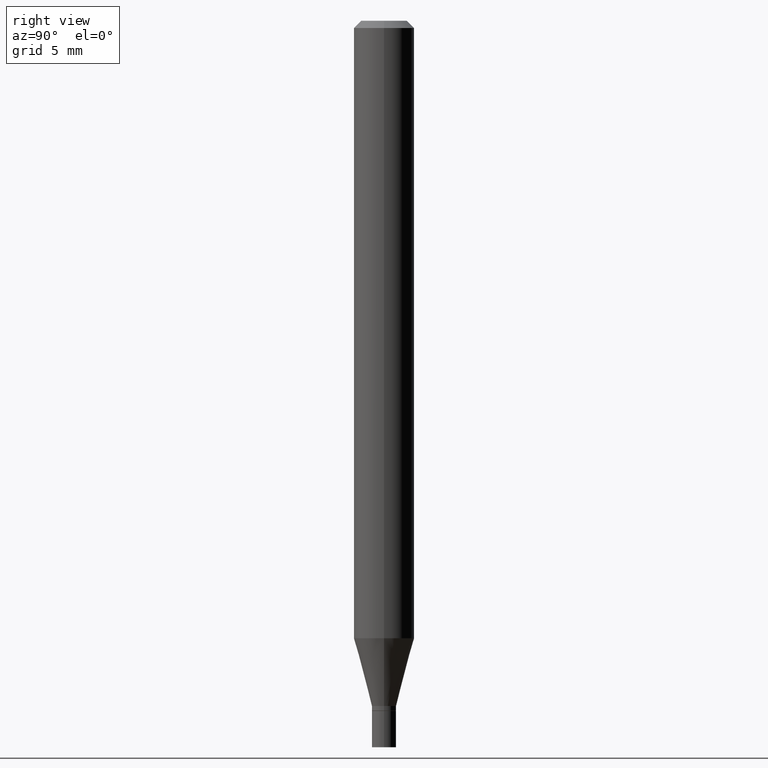
[diagram: clean part render]
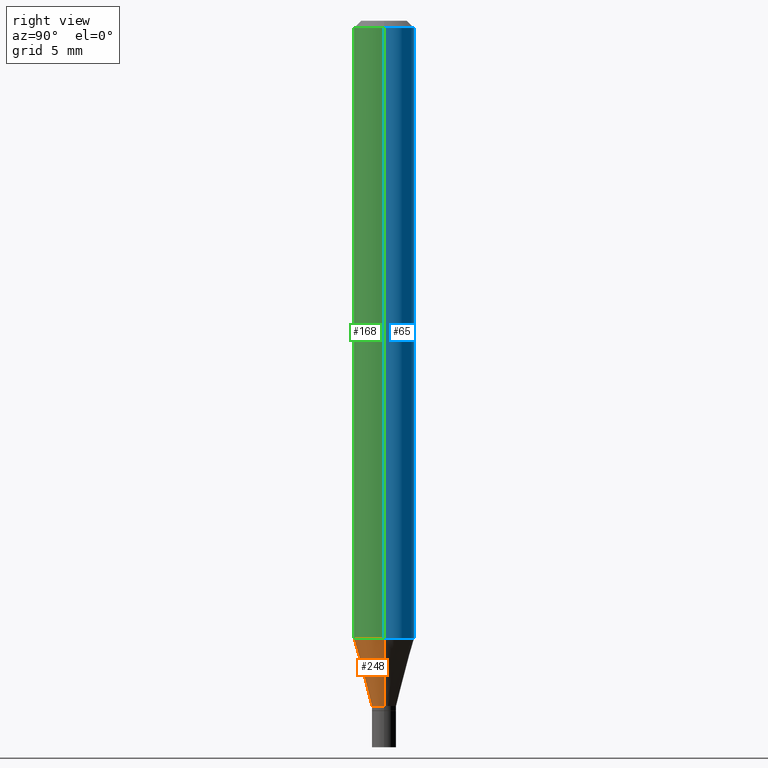
[diagram: same view with three faces highlighted in distinct colors, each labeled with its STEP entity id]
A machine part, right view with three faces highlighted in distinct colors.
Their STEP definitions:

[orange] entity #248 — the highlighted conical surface has half-angle 15 deg.
#15 = LINE ( 'NONE', #158, #332 ) ;
#25 = ORIENTED_EDGE ( 'NONE', *, *, #331, .T. ) ;
#35 = AXIS2_PLACEMENT_3D ( 'NONE', #170, #69, #211 ) ;
#40 = CONICAL_SURFACE ( 'NONE', #183, 0.02499999999999992853, 0.2617993877991500740 ) ;
#69 = DIRECTION ( 'NONE',  ( -2.445468806185136597E-29, 3.491481338843145583E-15, 1.000000000000000000 ) ) ;
#73 = DIRECTION ( 'NONE',  ( 0.2588190451025213501, 1.565188264969621968E-15, 0.9659258262890682012 ) ) ;
#93 = DIRECTION ( 'NONE',  ( 1.000000000000000000, -6.982962677686262766E-15, 0.000000000000000000 ) ) ;
#118 = EDGE_CURVE ( 'NONE', #376, #232, #393, .T. ) ;
#125 = ORIENTED_EDGE ( 'NONE', *, *, #430, .F. ) ;
#126 = CARTESIAN_POINT ( 'NONE',  ( -0.06250000000000001388, -4.007717418978942661E-15, -1.275048094716167313 ) ) ;
#128 = VERTEX_POINT ( 'NONE', #291 ) ;
#129 = EDGE_CURVE ( 'NONE', #461, #128, #207, .T. ) ;
#147 = DIRECTION ( 'NONE',  ( -2.445468806185136597E-29, 3.491481338843145583E-15, 1.000000000000000000 ) ) ;
#148 = AXIS2_PLACEMENT_3D ( 'NONE', #438, #425, #93 ) ;
#157 = CARTESIAN_POINT ( 'NONE',  ( -0.02499999999999992853, -4.385263914750984097E-15, -1.415000000000000036 ) ) ;
#158 = CARTESIAN_POINT ( 'NONE',  ( -0.02499999999999992853, -4.762810410523027111E-15, -1.415000000000000036 ) ) ;
#165 = ORIENTED_EDGE ( 'NONE', *, *, #129, .F. ) ;
#170 = CARTESIAN_POINT ( 'NONE',  ( 3.460338360751968441E-29, -4.940446094463050737E-15, -1.415000000000000036 ) ) ;
#183 = AXIS2_PLACEMENT_3D ( 'NONE', #287, #147, #433 ) ;
#207 = CIRCLE ( 'NONE', #148, 0.06250000000000000000 ) ;
#211 = DIRECTION ( 'NONE',  ( 1.000000000000000000, -6.982962677686274599E-15, 0.000000000000000000 ) ) ;
#212 = LINE ( 'NONE', #326, #316 ) ;
#232 = VERTEX_POINT ( 'NONE', #396 ) ;
#248 = ADVANCED_FACE ( 'NONE', ( #466 ), #40, .T. ) ;
#265 = DIRECTION ( 'NONE',  ( -0.2588190451025213501, 5.211531920934551042E-15, 0.9659258262890682012 ) ) ;
#287 = CARTESIAN_POINT ( 'NONE',  ( 3.460338360751968441E-29, -4.940446094463050737E-15, -1.415000000000000036 ) ) ;
#291 = CARTESIAN_POINT ( 'NONE',  ( 0.06250000000000001388, -4.888241796184397736E-15, -1.275048094716167313 ) ) ;
#316 = VECTOR ( 'NONE', #73, 39.37007874015747433 ) ;
#326 = CARTESIAN_POINT ( 'NONE',  ( 0.02499999999999992853, -5.115020161405207405E-15, -1.415000000000000036 ) ) ;
#331 = EDGE_CURVE ( 'NONE', #232, #128, #212, .T. ) ;
#332 = VECTOR ( 'NONE', #265, 39.37007874015747433 ) ;
#339 = EDGE_LOOP ( 'NONE', ( #125, #379, #25, #165 ) ) ;
#376 = VERTEX_POINT ( 'NONE', #157 ) ;
#379 = ORIENTED_EDGE ( 'NONE', *, *, #118, .T. ) ;
#393 = CIRCLE ( 'NONE', #35, 0.02499999999999992853 ) ;
#396 = CARTESIAN_POINT ( 'NONE',  ( 0.02499999999999992853, -5.115020161405207405E-15, -1.415000000000000036 ) ) ;
#425 = DIRECTION ( 'NONE',  ( -2.445468806185136597E-29, 3.491481338843145583E-15, 1.000000000000000000 ) ) ;
#430 = EDGE_CURVE ( 'NONE', #376, #461, #15, .T. ) ;
#433 = DIRECTION ( 'NONE',  ( 1.000000000000000000, -6.982962677686274599E-15, 0.000000000000000000 ) ) ;
#438 = CARTESIAN_POINT ( 'NONE',  ( 3.118090342014178512E-29, -4.451806628829006066E-15, -1.275048094716167313 ) ) ;
#461 = VERTEX_POINT ( 'NONE', #126 ) ;
#466 = FACE_OUTER_BOUND ( 'NONE', #339, .T. ) ;

[blue] entity #65 — the highlighted cylindrical surface (edge-blend (fillet) strip) has radius 1.5875 mm, axis along (-0, 0, 1).
#9 = DIRECTION ( 'NONE',  ( -2.445468806185136597E-29, 3.491481338843145583E-15, 1.000000000000000000 ) ) ;
#29 = EDGE_CURVE ( 'NONE', #128, #196, #361, .T. ) ;
#37 = CYLINDRICAL_SURFACE ( 'NONE', #310, 0.06250000000000000000 ) ;
#44 = DIRECTION ( 'NONE',  ( -2.445468806185136597E-29, 3.491481338843145583E-15, 1.000000000000000000 ) ) ;
#50 = VECTOR ( 'NONE', #189, 39.37007874015748143 ) ;
#65 = ADVANCED_FACE ( 'NONE', ( #391 ), #37, .T. ) ;
#66 = DIRECTION ( 'NONE',  ( 1.000000000000000000, -6.982962677686266711E-15, 4.876176775795935793E-29 ) ) ;
#82 = CARTESIAN_POINT ( 'NONE',  ( 0.06250000000000000000, -4.364351673553916694E-16, 3.047610484872459871E-30 ) ) ;
#84 = EDGE_CURVE ( 'NONE', #128, #461, #359, .T. ) ;
#126 = CARTESIAN_POINT ( 'NONE',  ( -0.06250000000000001388, -4.007717418978942661E-15, -1.275048094716167313 ) ) ;
#128 = VERTEX_POINT ( 'NONE', #291 ) ;
#136 = ORIENTED_EDGE ( 'NONE', *, *, #84, .T. ) ;
#141 = AXIS2_PLACEMENT_3D ( 'NONE', #197, #9, #194 ) ;
#189 = DIRECTION ( 'NONE',  ( -2.445468806185136877E-29, 3.491481338843145188E-15, 1.000000000000000000 ) ) ;
#190 = DIRECTION ( 'NONE',  ( 1.000000000000000000, -6.982962677686262766E-15, 0.000000000000000000 ) ) ;
#194 = DIRECTION ( 'NONE',  ( 1.000000000000000000, -6.982962677686266711E-15, 0.000000000000000000 ) ) ;
#196 = VERTEX_POINT ( 'NONE', #330 ) ;
#197 = CARTESIAN_POINT ( 'NONE',  ( 3.668203209277705088E-31, -5.237222008264718399E-17, -0.01499999999999999944 ) ) ;
#198 = ORIENTED_EDGE ( 'NONE', *, *, #366, .T. ) ;
#213 = DIRECTION ( 'NONE',  ( -2.445468806185136877E-29, 3.491481338843145188E-15, 1.000000000000000000 ) ) ;
#225 = VECTOR ( 'NONE', #213, 39.37007874015748143 ) ;
#247 = DIRECTION ( 'NONE',  ( -2.445468806185136597E-29, 3.491481338843145583E-15, 1.000000000000000000 ) ) ;
#253 = CARTESIAN_POINT ( 'NONE',  ( 3.118090342014178512E-29, -4.451806628829006066E-15, -1.275048094716167313 ) ) ;
#269 = ORIENTED_EDGE ( 'NONE', *, *, #29, .F. ) ;
#271 = ORIENTED_EDGE ( 'NONE', *, *, #413, .F. ) ;
#272 = AXIS2_PLACEMENT_3D ( 'NONE', #253, #247, #190 ) ;
#284 = CARTESIAN_POINT ( 'NONE',  ( 0.000000000000000000, 0.000000000000000000, 0.000000000000000000 ) ) ;
#291 = CARTESIAN_POINT ( 'NONE',  ( 0.06250000000000001388, -4.888241796184397736E-15, -1.275048094716167313 ) ) ;
#310 = AXIS2_PLACEMENT_3D ( 'NONE', #284, #44, #66 ) ;
#330 = CARTESIAN_POINT ( 'NONE',  ( 0.06250000000000000000, -4.888073874380388472E-16, -0.01499999999999999944 ) ) ;
#353 = EDGE_LOOP ( 'NONE', ( #136, #198, #271, #269 ) ) ;
#354 = CIRCLE ( 'NONE', #141, 0.06250000000000000000 ) ;
#359 = CIRCLE ( 'NONE', #272, 0.06250000000000000000 ) ;
#361 = LINE ( 'NONE', #82, #225 ) ;
#366 = EDGE_CURVE ( 'NONE', #461, #454, #448, .T. ) ;
#391 = FACE_OUTER_BOUND ( 'NONE', #353, .T. ) ;
#413 = EDGE_CURVE ( 'NONE', #196, #454, #354, .T. ) ;
#417 = CARTESIAN_POINT ( 'NONE',  ( -0.06250000000000000000, 4.440892098500626162E-16, -3.074334431409316114E-30 ) ) ;
#448 = LINE ( 'NONE', #417, #50 ) ;
#454 = VERTEX_POINT ( 'NONE', #455 ) ;
#455 = CARTESIAN_POINT ( 'NONE',  ( -0.06250000000000000000, -1.808000214605764154E-15, -0.01499999999999999944 ) ) ;
#461 = VERTEX_POINT ( 'NONE', #126 ) ;

[green] entity #168 — the highlighted cylindrical surface (edge-blend (fillet) strip) has radius 1.5875 mm, axis along (-0, 0, 1).
#12 = FACE_OUTER_BOUND ( 'NONE', #309, .T. ) ;
#29 = EDGE_CURVE ( 'NONE', #128, #196, #361, .T. ) ;
#50 = VECTOR ( 'NONE', #189, 39.37007874015748143 ) ;
#81 = CIRCLE ( 'NONE', #240, 0.06250000000000000000 ) ;
#82 = CARTESIAN_POINT ( 'NONE',  ( 0.06250000000000000000, -4.364351673553916694E-16, 3.047610484872459871E-30 ) ) ;
#93 = DIRECTION ( 'NONE',  ( 1.000000000000000000, -6.982962677686262766E-15, 0.000000000000000000 ) ) ;
#105 = DIRECTION ( 'NONE',  ( -2.445468806185136597E-29, 3.491481338843145583E-15, 1.000000000000000000 ) ) ;
#111 = CYLINDRICAL_SURFACE ( 'NONE', #465, 0.06250000000000000000 ) ;
#115 = EDGE_CURVE ( 'NONE', #454, #196, #81, .T. ) ;
#119 = ORIENTED_EDGE ( 'NONE', *, *, #129, .T. ) ;
#126 = CARTESIAN_POINT ( 'NONE',  ( -0.06250000000000001388, -4.007717418978942661E-15, -1.275048094716167313 ) ) ;
#128 = VERTEX_POINT ( 'NONE', #291 ) ;
#129 = EDGE_CURVE ( 'NONE', #461, #128, #207, .T. ) ;
#137 = DIRECTION ( 'NONE',  ( 1.000000000000000000, -6.982962677686266711E-15, 0.000000000000000000 ) ) ;
#148 = AXIS2_PLACEMENT_3D ( 'NONE', #438, #425, #93 ) ;
#168 = ADVANCED_FACE ( 'NONE', ( #12 ), #111, .T. ) ;
#182 = ORIENTED_EDGE ( 'NONE', *, *, #29, .T. ) ;
#188 = ORIENTED_EDGE ( 'NONE', *, *, #366, .F. ) ;
#189 = DIRECTION ( 'NONE',  ( -2.445468806185136877E-29, 3.491481338843145188E-15, 1.000000000000000000 ) ) ;
#196 = VERTEX_POINT ( 'NONE', #330 ) ;
#207 = CIRCLE ( 'NONE', #148, 0.06250000000000000000 ) ;
#213 = DIRECTION ( 'NONE',  ( -2.445468806185136877E-29, 3.491481338843145188E-15, 1.000000000000000000 ) ) ;
#225 = VECTOR ( 'NONE', #213, 39.37007874015748143 ) ;
#240 = AXIS2_PLACEMENT_3D ( 'NONE', #464, #397, #137 ) ;
#266 = ORIENTED_EDGE ( 'NONE', *, *, #115, .F. ) ;
#291 = CARTESIAN_POINT ( 'NONE',  ( 0.06250000000000001388, -4.888241796184397736E-15, -1.275048094716167313 ) ) ;
#295 = CARTESIAN_POINT ( 'NONE',  ( 0.000000000000000000, 0.000000000000000000, 0.000000000000000000 ) ) ;
#309 = EDGE_LOOP ( 'NONE', ( #188, #119, #182, #266 ) ) ;
#330 = CARTESIAN_POINT ( 'NONE',  ( 0.06250000000000000000, -4.888073874380388472E-16, -0.01499999999999999944 ) ) ;
#361 = LINE ( 'NONE', #82, #225 ) ;
#366 = EDGE_CURVE ( 'NONE', #461, #454, #448, .T. ) ;
#397 = DIRECTION ( 'NONE',  ( -2.445468806185136597E-29, 3.491481338843145583E-15, 1.000000000000000000 ) ) ;
#405 = DIRECTION ( 'NONE',  ( 1.000000000000000000, -6.982962677686266711E-15, 4.876176775795935793E-29 ) ) ;
#417 = CARTESIAN_POINT ( 'NONE',  ( -0.06250000000000000000, 4.440892098500626162E-16, -3.074334431409316114E-30 ) ) ;
#425 = DIRECTION ( 'NONE',  ( -2.445468806185136597E-29, 3.491481338843145583E-15, 1.000000000000000000 ) ) ;
#438 = CARTESIAN_POINT ( 'NONE',  ( 3.118090342014178512E-29, -4.451806628829006066E-15, -1.275048094716167313 ) ) ;
#448 = LINE ( 'NONE', #417, #50 ) ;
#454 = VERTEX_POINT ( 'NONE', #455 ) ;
#455 = CARTESIAN_POINT ( 'NONE',  ( -0.06250000000000000000, -1.808000214605764154E-15, -0.01499999999999999944 ) ) ;
#461 = VERTEX_POINT ( 'NONE', #126 ) ;
#464 = CARTESIAN_POINT ( 'NONE',  ( 3.668203209277705088E-31, -5.237222008264718399E-17, -0.01499999999999999944 ) ) ;
#465 = AXIS2_PLACEMENT_3D ( 'NONE', #295, #105, #405 ) ;